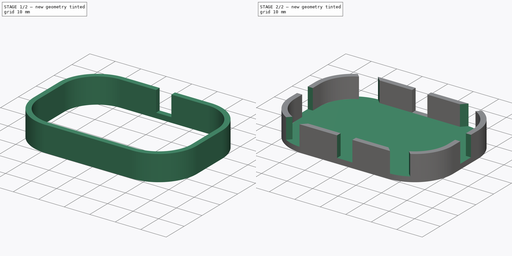
[diagram: build sequence overview — one tinted view per stage of 2, left to right]
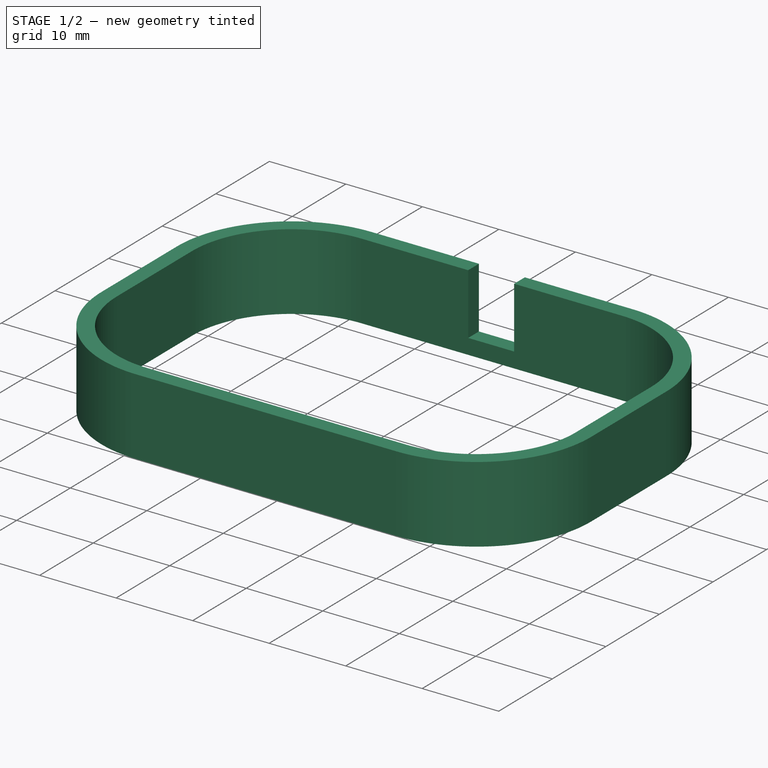
[diagram: stage 1 of 2 — iso view after this stage's code; geometry added in this stage tinted green]
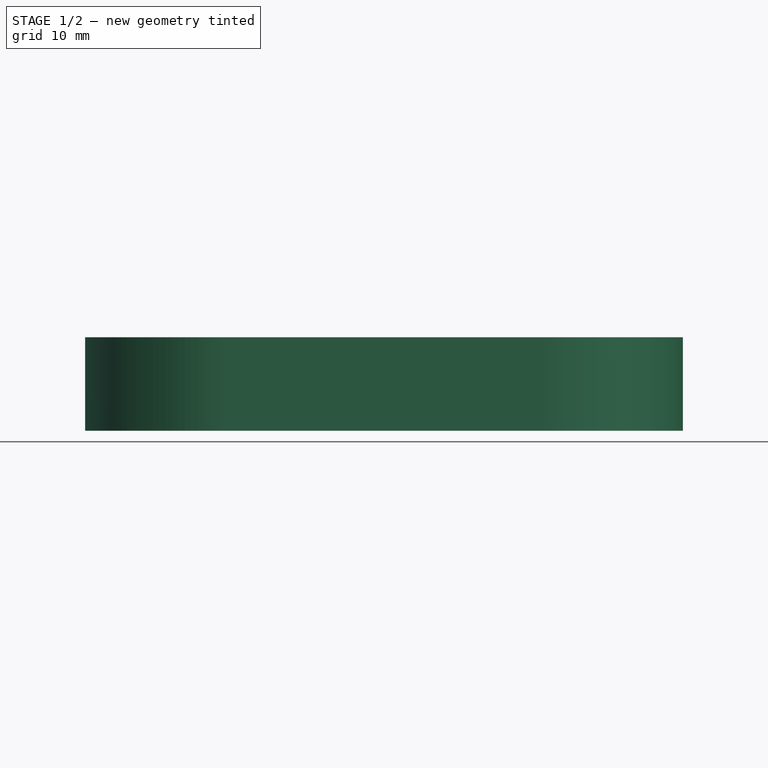
[diagram: stage 1 of 2 — front view after this stage's code; geometry added in this stage tinted green]
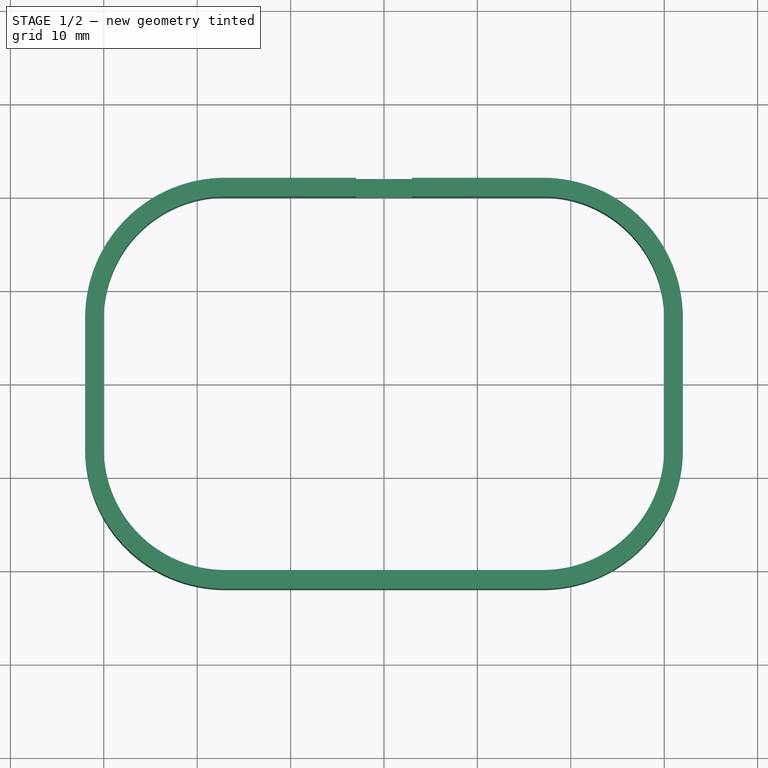
[diagram: stage 1 of 2 — top view after this stage's code; geometry added in this stage tinted green]
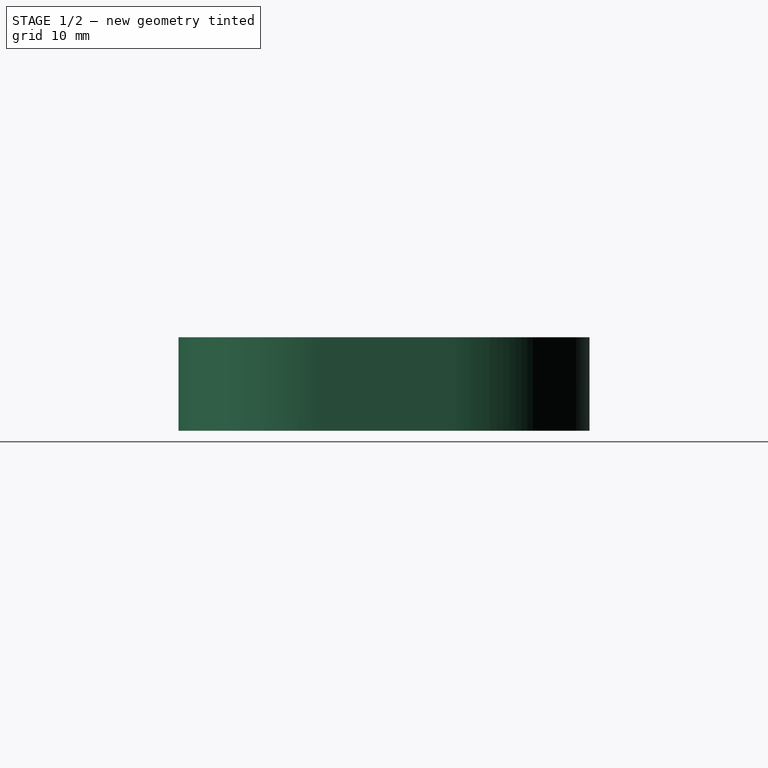
[diagram: stage 1 of 2 — right view after this stage's code; geometry added in this stage tinted green]
FCSTD DOCUMENT  (FreeCAD 2024.3R38774 (Git))
Label: ant bait box
License: All rights reserved
LicenseURL: http://en.wikipedia.org/wiki/All_rights_reserved
objects: Sketcher::SketchObject×5, PartDesign::Pad×2, PartDesign::Pocket×1, PartDesign::PolarPattern×1, PartDesign::Body×1
note: 22 computed .brp shape members not serialized (recipe doc carries the construction recipe); baked Part::Feature solids carry a one-line shape summary decoded from their .brp

FEATURE [Sketcher::SketchObject] Sketch
  ArcFitTolerance = 0
  AttachmentSupport = -> [XY_Plane001]
  FullyConstrained = true
  MakeInternals = false
  MapMode = 5
  sketch-geometry (26):
    g0: LineSegment StartX=-32 StartY=7 StartZ=0 EndX=-32 EndY=-7 EndZ=0
    g1: LineSegment StartX=-17 StartY=-22 StartZ=0 EndX=17 EndY=-22 EndZ=0
    g2: LineSegment StartX=32 StartY=-7 StartZ=0 EndX=32 EndY=7 EndZ=0
    g3: LineSegment StartX=17 StartY=22 StartZ=0 EndX=-17 EndY=22 EndZ=0
    g4: GeomPoint [constr] X=0 Y=0 Z=0
    g5: LineSegment StartX=-30 StartY=7 StartZ=0 EndX=-30 EndY=-7 EndZ=0
    g6: LineSegment StartX=-17 StartY=-20 StartZ=0 EndX=17 EndY=-20 EndZ=0
    g7: LineSegment StartX=30 StartY=-7 StartZ=0 EndX=30 EndY=7 EndZ=0
    g8: LineSegment StartX=17 StartY=20 StartZ=0 EndX=-17 EndY=20 EndZ=0
    g9: GeomPoint [constr] X=0 Y=0 Z=0
    g10: ArcOfCircle CenterX=-17 CenterY=7 CenterZ=0 NormalX=0 NormalY=0 NormalZ=1 AngleXU=0 Radius=15 StartAngle=1.5708 EndAngle=3.14159
    g11: GeomPoint [constr] X=-32 Y=22 Z=0
    g12: ArcOfCircle CenterX=-17 CenterY=-7 CenterZ=0 NormalX=0 NormalY=0 NormalZ=1 AngleXU=0 Radius=15 StartAngle=3.14159 EndAngle=4.71239
    g13: GeomPoint [constr] X=-32 Y=-22 Z=0
    g14: ArcOfCircle CenterX=17 CenterY=-7 CenterZ=0 NormalX=0 NormalY=0 NormalZ=1 AngleXU=0 Radius=15 StartAngle=4.71239 EndAngle=6.28319
    g15: GeomPoint [constr] X=32 Y=-22 Z=0
    g16: ArcOfCircle CenterX=17 CenterY=7 CenterZ=0 NormalX=0 NormalY=0 NormalZ=1 AngleXU=0 Radius=15 StartAngle=0 EndAngle=1.5708
    g17: GeomPoint [constr] X=32 Y=22 Z=0
    g18: ArcOfCircle CenterX=-17 CenterY=7 CenterZ=0 NormalX=0 NormalY=0 NormalZ=1 AngleXU=0 Radius=13 StartAngle=1.5708 EndAngle=3.14159
    g19: GeomPoint [constr] X=-30 Y=20 Z=0
    g20: ArcOfCircle CenterX=-17 CenterY=-7 CenterZ=0 NormalX=0 NormalY=0 NormalZ=1 AngleXU=0 Radius=13 StartAngle=3.14159 EndAngle=4.71239
    g21: GeomPoint [constr] X=-30 Y=-20 Z=0
    g22: ArcOfCircle CenterX=17 CenterY=-7 CenterZ=0 NormalX=0 NormalY=0 NormalZ=1 AngleXU=0 Radius=13 StartAngle=4.71239 EndAngle=6.28319
    g23: GeomPoint [constr] X=30 Y=-20 Z=0
    g24: ArcOfCircle CenterX=17 CenterY=7 CenterZ=0 NormalX=0 NormalY=0 NormalZ=1 AngleXU=0 Radius=13 StartAngle=0 EndAngle=1.5708
    g25: GeomPoint [constr] X=30 Y=20 Z=0
  constraints (53):
    c: Vertical(g0)
    c: Vertical(g2)
    c: Horizontal(g1)
    c: Horizontal(g3)
    c: Symmetric(g15,g11,g4)
    c: Coincident(g4,g-1)
    c: Symmetric(g23,g19,g9)
    c: Coincident(g9,g4)
    c: PointOnObject(g11,g3)
    c: PointOnObject(g11,g0)
    c: Tangent(g3,g10) = -1.5708
    c: Tangent(g0,g10) = -1.5708
    c: PointOnObject(g13,g0)
    c: PointOnObject(g13,g1)
    c: Tangent(g0,g12) = -1.5708
    c: Tangent(g1,g12) = -1.5708
    c: PointOnObject(g15,g1)
    c: PointOnObject(g15,g2)
    c: Tangent(g1,g14) = -1.5708
    c: Tangent(g2,g14) = -1.5708
    c: PointOnObject(g17,g2)
    c: PointOnObject(g17,g3)
    c: Tangent(g2,g16) = -1.5708
    c: Tangent(g3,g16) = -1.5708
    c: PointOnObject(g19,g8)
    c: PointOnObject(g19,g5)
    c: Tangent(g8,g18) = -1.5708
    c: Tangent(g5,g18) = -1.5708
    c: PointOnObject(g21,g5)
    c: PointOnObject(g21,g6)
    c: Tangent(g5,g20) = -1.5708
    c: Tangent(g6,g20) = -1.5708
    c: PointOnObject(g23,g6)
    c: PointOnObject(g23,g7)
    c: Tangent(g6,g22) = -1.5708
    c: Tangent(g7,g22) = -1.5708
    c: PointOnObject(g25,g7)
    c: PointOnObject(g25,g8)
    c: Tangent(g7,g24) = -1.5708
    c: Tangent(g8,g24) = -1.5708
    c: Vertical(g3,g8)
    c: Horizontal(g5,g0)
    c: Horizontal(g0,g5)
    c: Vertical(g8,g3)
    c: Horizontal(g7,g2)
    c: Symmetric(g8,g8,g-2)
    c: Symmetric(g6,g6,g-2)
    c: Symmetric(g5,g5,g-1)
    c: Vertical(g7)
    c: DistanceY(g8,g3) = 2
    c: DistanceX(g5,g7) = 60
    c: DistanceY(g6,g8) = 40
    c: Radius(g10) = 15
FEATURE [PartDesign::Pad] Pad
  Direction = (0,0,1)
  Length = 10
  Length2 = 10
  Profile = -> Sketch
  ReferenceAxis = -> Sketch [N_Axis]
  Refine = true
  Suppressed = false
  Type = 0
FEATURE [Sketcher::SketchObject] Sketch001
  ArcFitTolerance = 0
  AttachmentSupport = -> [XY_Plane001]
  FullyConstrained = true
  MakeInternals = false
  MapMode = 5
  sketch-geometry (14):
    g0: LineSegment StartX=-31 StartY=6 StartZ=0 EndX=-31 EndY=-6 EndZ=0
    g1: LineSegment StartX=-16 StartY=-21 StartZ=0 EndX=16 EndY=-21 EndZ=0
    g2: LineSegment StartX=31 StartY=-6 StartZ=0 EndX=31 EndY=6 EndZ=0
    g3: LineSegment StartX=16 StartY=21 StartZ=0 EndX=-16 EndY=21 EndZ=0
    g4: GeomPoint [constr] X=0 Y=0 Z=0
    g5: GeomPoint [constr] X=0 Y=0 Z=0
    g6: ArcOfCircle CenterX=-16 CenterY=6 CenterZ=0 NormalX=0 NormalY=0 NormalZ=1 AngleXU=0 Radius=15 StartAngle=1.5708 EndAngle=3.14159
    g7: GeomPoint [constr] X=-31 Y=21 Z=0
    g8: ArcOfCircle CenterX=-16 CenterY=-6 CenterZ=0 NormalX=0 NormalY=0 NormalZ=1 AngleXU=0 Radius=15 StartAngle=3.14159 EndAngle=4.71239
    g9: GeomPoint [constr] X=-31 Y=-21 Z=0
    g10: ArcOfCircle CenterX=16 CenterY=-6 CenterZ=0 NormalX=0 NormalY=0 NormalZ=1 AngleXU=0 Radius=15 StartAngle=4.71239 EndAngle=6.28319
    g11: GeomPoint [constr] X=31 Y=-21 Z=0
    g12: ArcOfCircle CenterX=16 CenterY=6 CenterZ=0 NormalX=0 NormalY=0 NormalZ=1 AngleXU=0 Radius=15 StartAngle=-1.0303e-12 EndAngle=1.5708
    g13: GeomPoint [constr] X=31 Y=21 Z=0
  constraints (29):
    c: Vertical(g0)
    c: Vertical(g2)
    c: Horizontal(g1)
    c: Horizontal(g3)
    c: Symmetric(g11,g7,g4)
    c: Coincident(g4,g-1)
    c: Coincident(g5,g4)
    c: PointOnObject(g7,g3)
    c: PointOnObject(g7,g0)
    c: Tangent(g3,g6) = -1.5708
    c: Tangent(g0,g6) = -1.5708
    c: PointOnObject(g9,g0)
    c: PointOnObject(g9,g1)
    c: Tangent(g0,g8) = -1.5708
    c: Tangent(g1,g8) = -1.5708
    c: PointOnObject(g11,g1)
    c: PointOnObject(g11,g2)
    c: Tangent(g1,g10) = -1.5708
    c: Tangent(g2,g10) = -1.5708
    c: PointOnObject(g13,g2)
    c: PointOnObject(g13,g3)
    c: Tangent(g2,g12) = -1.5708
    c: Tangent(g3,g12) = -1.5708
    c: Radius(g6) = 15
    c: DistanceX(g3,g3) = 32
    c: DistanceY(g2,g2) = 12
    c: Equal(g6,g8)
    c: Equal(g8,g10)
    c: Equal(g10,g12)
FEATURE [Sketcher::SketchObject] Sketch002
  ArcFitTolerance = 0
  AttachmentSupport = -> [XZ_Plane001]
  FullyConstrained = true
  MakeInternals = false
  MapMode = 5
  Placement = pos=(0,0,0) rot=(1,0,0;1.5708rad)
  sketch-geometry (5):
    g0: LineSegment StartX=-3 StartY=10 StartZ=0 EndX=-3 EndY=2 EndZ=0
    g1: LineSegment StartX=-3 StartY=2 StartZ=0 EndX=3 EndY=2 EndZ=0
    g2: LineSegment StartX=3 StartY=2 StartZ=0 EndX=3 EndY=10 EndZ=0
    g3: LineSegment StartX=3 StartY=10 StartZ=0 EndX=-3 EndY=10 EndZ=0
    g4: GeomPoint [constr] X=0 Y=6 Z=0
  constraints (13):
    c: Coincident(g0,g1)
    c: Coincident(g1,g2)
    c: Coincident(g2,g3)
    c: Coincident(g3,g0)
    c: Vertical(g0)
    c: Vertical(g2)
    c: Horizontal(g1)
    c: Horizontal(g3)
    c: Symmetric(g2,g0,g4)
    c: PointOnObject(g4,g-2)
    c: DistanceX(g1,g1) = 6
    c: DistanceY(g-1,g0) = 2
    c: DistanceY(g0,g0) = 8
FEATURE [PartDesign::Pocket] Pocket
  BaseFeature = -> Pad
  Direction = (0,1,-2e-16)
  Length = 5
  Length2 = 5
  Profile = -> Sketch002
  ReferenceAxis = -> Sketch002 [N_Axis]
  Refine = true
  Suppressed = false
  Type = 1
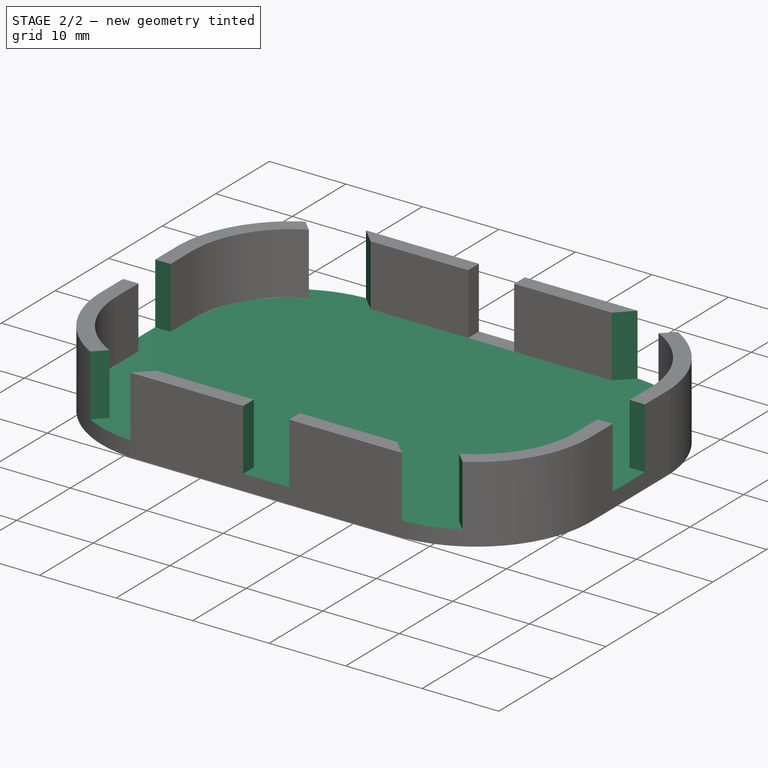
[diagram: stage 2 of 2 — iso view after this stage's code; geometry added in this stage tinted green]
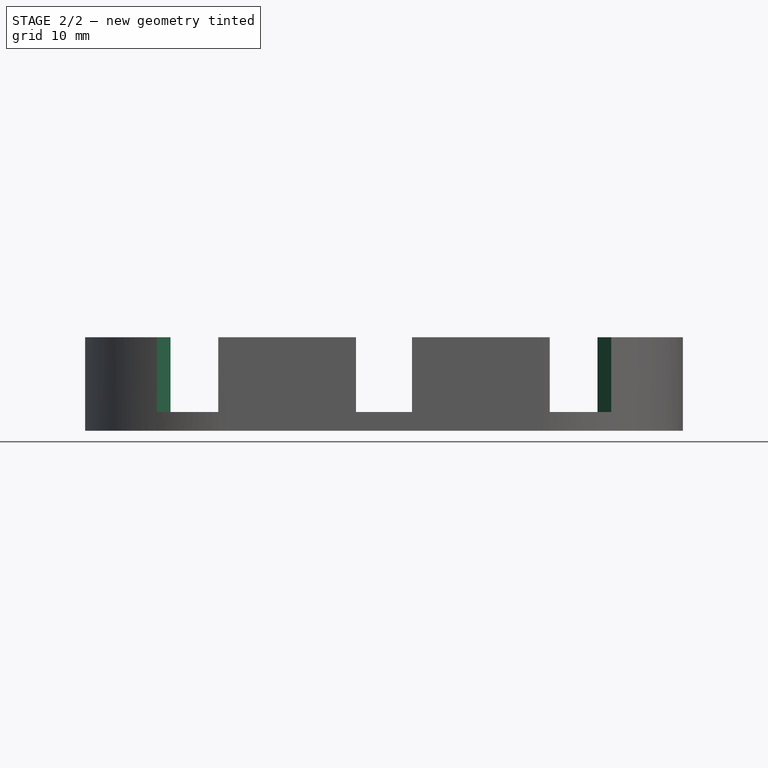
[diagram: stage 2 of 2 — front view after this stage's code; geometry added in this stage tinted green]
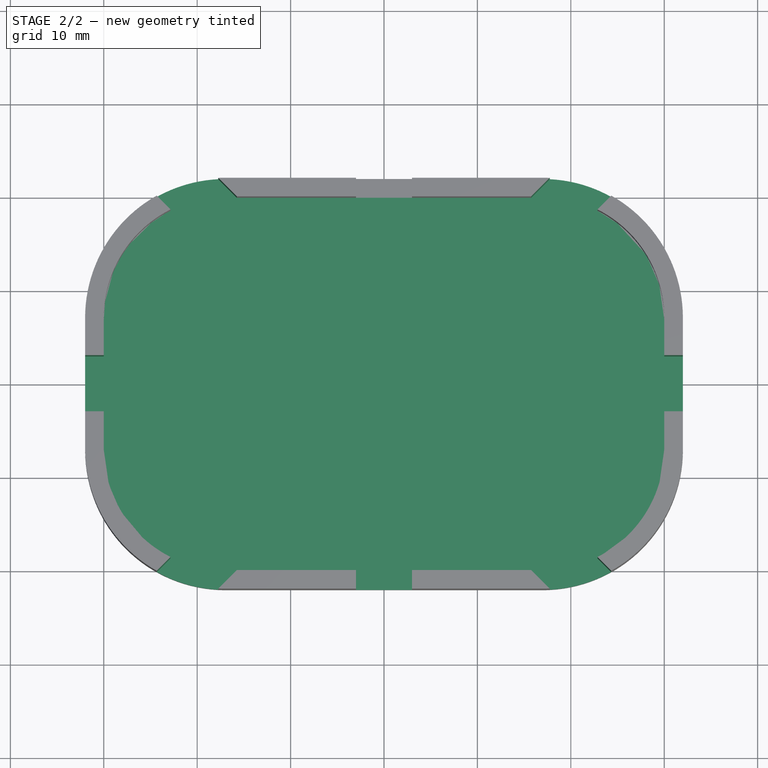
[diagram: stage 2 of 2 — top view after this stage's code; geometry added in this stage tinted green]
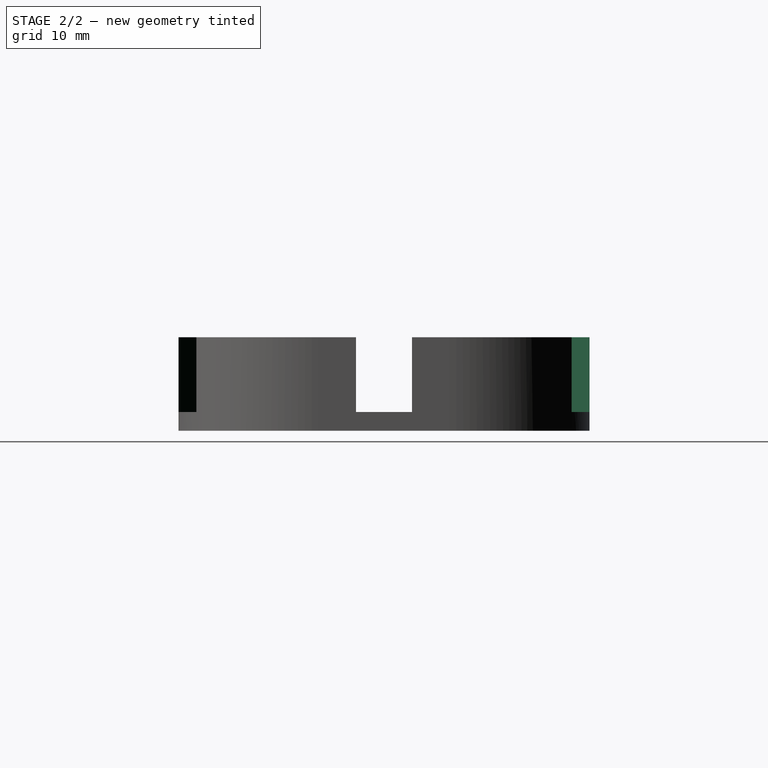
[diagram: stage 2 of 2 — right view after this stage's code; geometry added in this stage tinted green]
FEATURE [PartDesign::PolarPattern] PolarPattern
  Angle = 360
  Axis = -> Sketch002 [V_Axis]
  BaseFeature = -> Pocket
  Mode = 0
  Occurrences = 8
  Offset = 120
  Originals = -> [Pocket]
  Refine = true
  Suppressed = false
  TransformMode = 0
FEATURE [PartDesign::Pad] Pad001
  BaseFeature = -> PolarPattern
  Direction = (0,0,1)
  Length = 2
  Length2 = 10
  Profile = -> Sketch001
  ReferenceAxis = -> Sketch001 [N_Axis]
  Refine = true
  Suppressed = false
  Type = 0
FEATURE [Sketcher::SketchObject] Sketch003  label="prof"
  ArcFitTolerance = 0
  AttachmentSupport = -> [YZ_Plane001]
  FullyConstrained = true
  MakeInternals = false
  MapMode = 5
  Placement = pos=(0,0,0) rot=(0.57735,0.57735,0.57735;2.0944rad)
  sketch-geometry (3):
    g0: LineSegment StartX=-22 StartY=0 StartZ=0 EndX=-19 EndY=3 EndZ=0
    g1: LineSegment StartX=-19 StartY=3 StartZ=0 EndX=-22 EndY=3 EndZ=0
    g2: LineSegment StartX=-22 StartY=3 StartZ=0 EndX=-22 EndY=0 EndZ=0
  constraints (9):
    c: PointOnObject(g0,g-1)
    c: Coincident(g0,g1)
    c: Horizontal(g1)
    c: Coincident(g1,g2)
    c: Coincident(g2,g0)
    c: Vertical(g2)
    c: DistanceX(g1,g1) = 3
    c: DistanceY(g2,g2) = 3
    c: DistanceX(g0,g-1) = 22
FEATURE [Sketcher::SketchObject] Sketch004  label="path"
  ArcFitTolerance = 0
  AttachmentSupport = -> [XY_Plane001]
  FullyConstrained = true
  MakeInternals = false
  MapMode = 5
  sketch-geometry (10):
    g0: LineSegment StartX=-31 StartY=7 StartZ=0 EndX=-31 EndY=-7 EndZ=0
    g1: LineSegment StartX=-17 StartY=-21 StartZ=0 EndX=17 EndY=-21 EndZ=0
    g2: LineSegment StartX=31 StartY=-7 StartZ=0 EndX=31 EndY=7 EndZ=0
    g3: LineSegment StartX=17 StartY=21 StartZ=0 EndX=-17 EndY=21 EndZ=0
    g4: GeomPoint [constr] X=0 Y=0 Z=0
    g5: GeomPoint [constr] X=0 Y=0 Z=0
    g6: ArcOfCircle CenterX=-17 CenterY=7 CenterZ=0 NormalX=0 NormalY=0 NormalZ=1 AngleXU=0 Radius=14 StartAngle=1.5708 EndAngle=3.14159
    g7: ArcOfCircle CenterX=-17 CenterY=-7 CenterZ=0 NormalX=0 NormalY=0 NormalZ=1 AngleXU=0 Radius=14 StartAngle=3.14159 EndAngle=4.71239
    g8: ArcOfCircle CenterX=17 CenterY=-7 CenterZ=0 NormalX=0 NormalY=0 NormalZ=1 AngleXU=0 Radius=14 StartAngle=4.71239 EndAngle=6.28319
    g9: ArcOfCircle CenterX=17 CenterY=7 CenterZ=0 NormalX=0 NormalY=0 NormalZ=1 AngleXU=0 Radius=14 StartAngle=0 EndAngle=1.5708
  constraints (20):
    c: Vertical(g0)
    c: Vertical(g2)
    c: Horizontal(g1)
    c: Horizontal(g3)
    c: Coincident(g4,g-1)
    c: Coincident(g5,g4)
    c: Tangent(g3,g6) = -1.5708
    c: Tangent(g0,g6) = -1.5708
    c: Tangent(g0,g7) = -1.5708
    c: Tangent(g1,g7) = -1.5708
    c: Tangent(g1,g8) = -1.5708
    c: Tangent(g2,g8) = -1.5708
    c: Tangent(g2,g9) = -1.5708
    c: Tangent(g3,g9) = -1.5708
    c: Radius(g6) = 14
    c: DistanceY(g1,g3) = 42
    c: DistanceX(g0,g2) = 62
    c: Equal(g8,g9)
    c: Symmetric(g3,g1,g-1)
    c: Symmetric(g2,g0,g-2)
FEATURE [PartDesign::Body] Body001  label="Body"
  AllowCompound = false
  Group = -> [Sketch,Pad,Sketch001,Sketch002,Pocket,PolarPattern,Pad001,Sketch003,Sketch004]
  Origin = -> Origin001
  Tip = -> Pad001
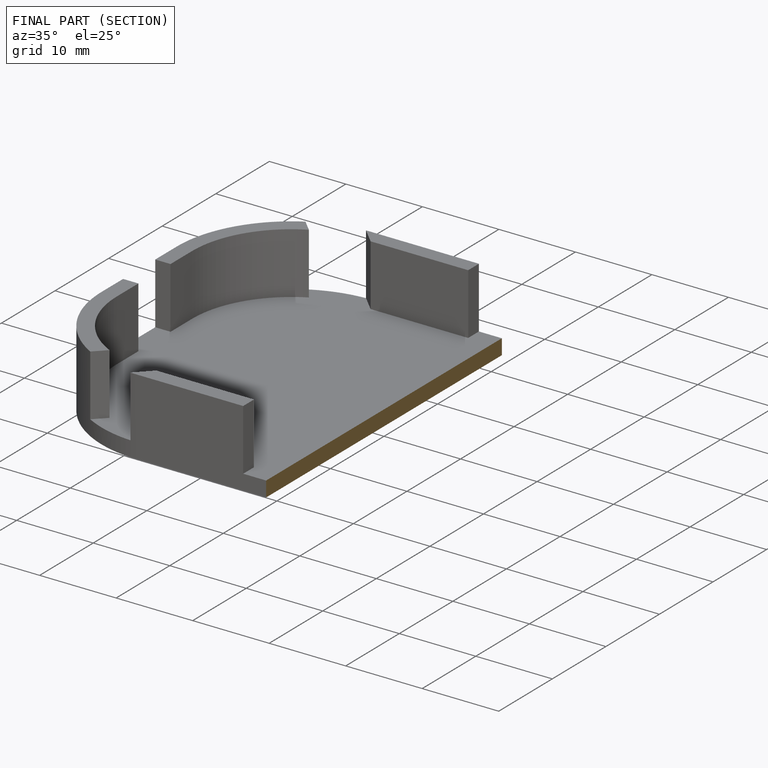
[diagram: finished part — half-section view (interior)]
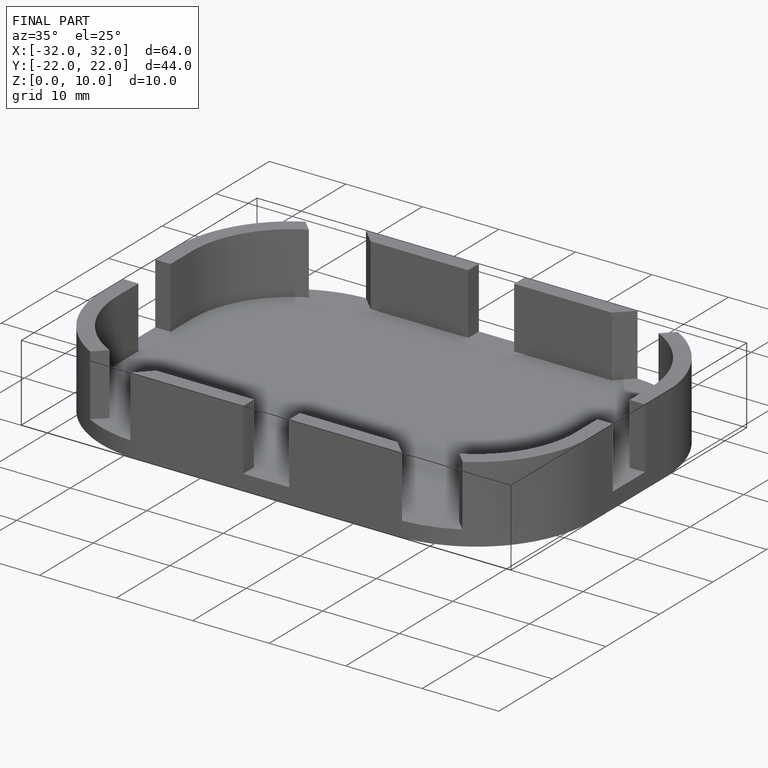
[diagram: finished part — iso view with bounding-box wireframe]
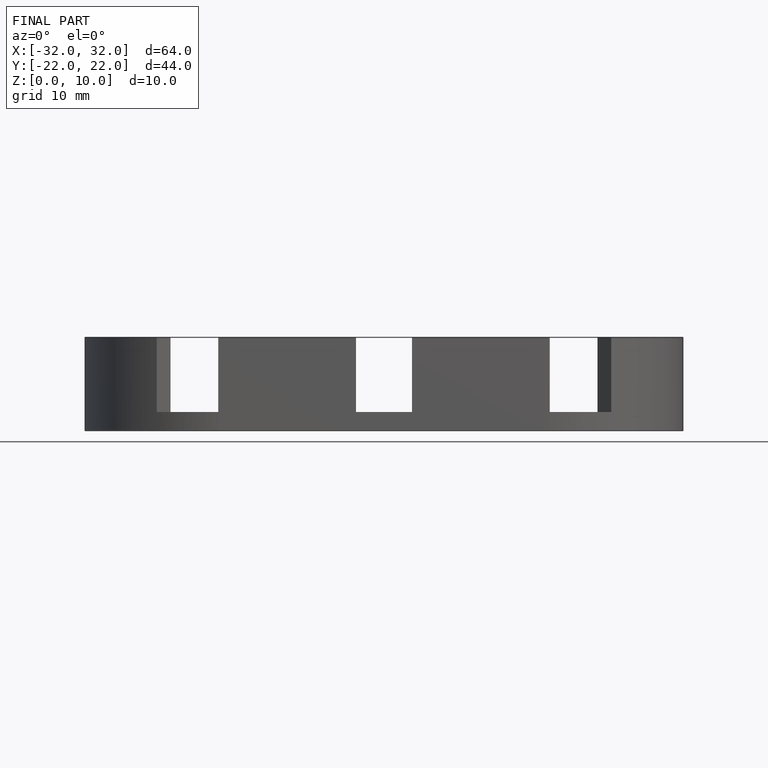
[diagram: finished part — front view with bounding-box wireframe]
